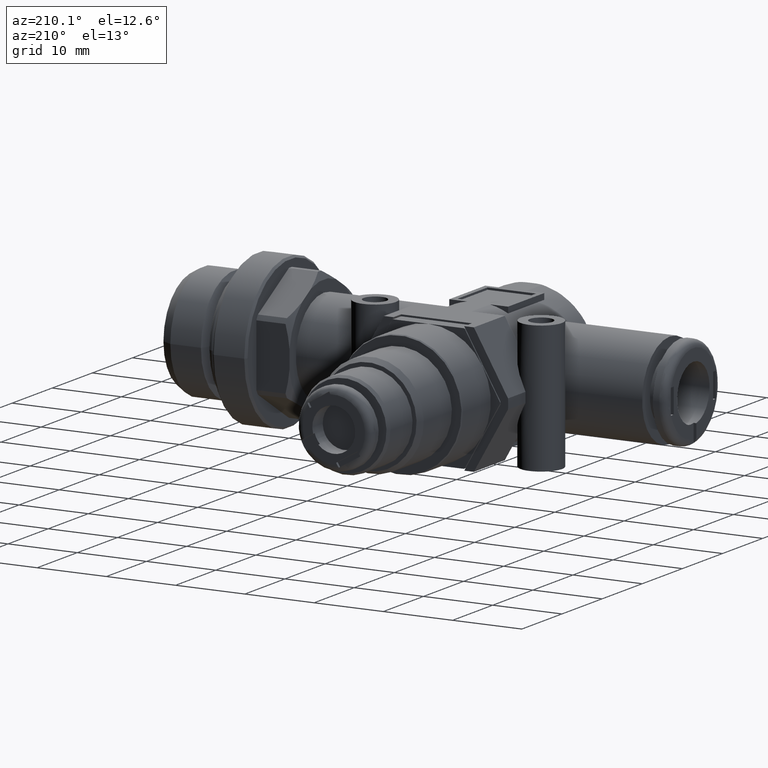
[diagram: clean part render]
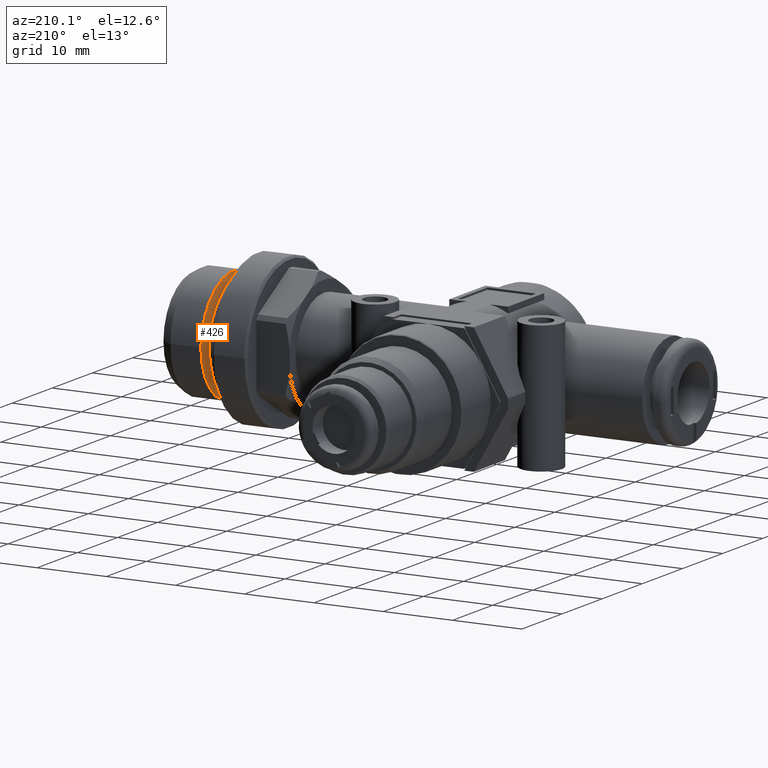
[diagram: same view with one face highlighted and labeled with its STEP entity id]
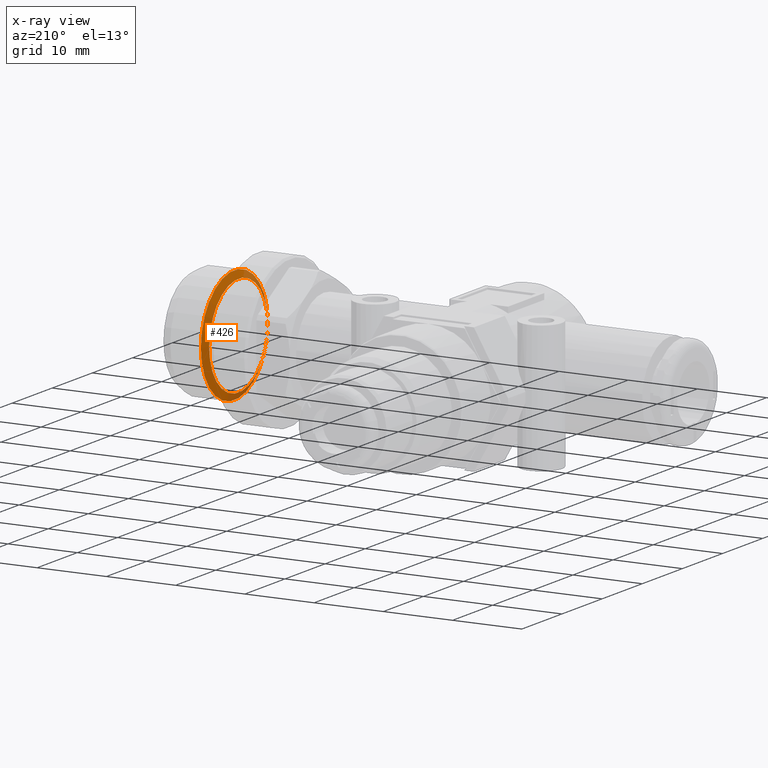
[diagram: x-ray of the same camera — body ghosted, the highlighted face saturated]
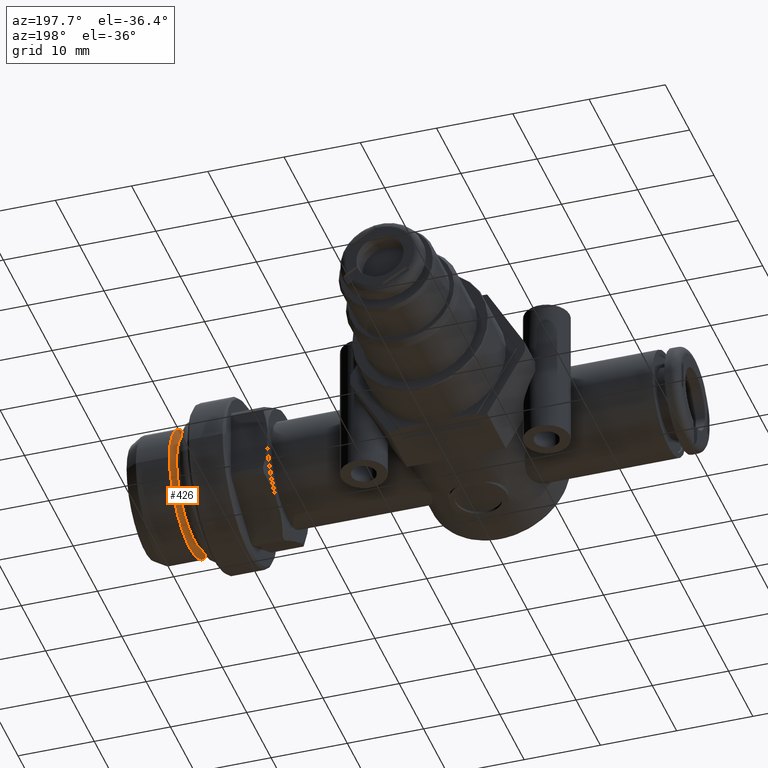
[diagram: same view with one face highlighted and labeled with its STEP entity id]
A machine part, auxiliary view. The second image highlights one B-rep face of the part: STEP entity #426.
The next image is the same camera in x-ray: the body ghosted, the highlighted face saturated — about 18% of this face is hidden behind the body in this view.
A second angle (auxiliary view) of the same face is appended — the face is thin or edge-on in the first view.
In plain terms, the highlighted conical surface has half-angle 60 deg.
Its self-contained STEP definition (entity closure, byte-faithful):
#426 = ADVANCED_FACE( '', ( #939, #940 ), #941, .T. );
#939 = FACE_OUTER_BOUND( '', #1624, .T. );
#940 = FACE_BOUND( '', #1625, .T. );
#941 = CONICAL_SURFACE( '', #1626, 7.30000000000000, 1.04719755119660 );
#1624 = EDGE_LOOP( '', ( #2547 ) );
#1625 = EDGE_LOOP( '', ( #2548 ) );
#1626 = AXIS2_PLACEMENT_3D( '', #2549, #2550, #2551 );
#2547 = ORIENTED_EDGE( '', *, *, #3889, .T. );
#2548 = ORIENTED_EDGE( '', *, *, #3890, .F. );
#2549 = CARTESIAN_POINT( '', ( -2.50000000000000, 0.000000000000000, 0.000000000000000 ) );
#2550 = DIRECTION( '', ( -1.00000000000000, 0.000000000000000, -0.000000000000000 ) );
#2551 = DIRECTION( '', ( 0.000000000000000, 0.000000000000000, 1.00000000000000 ) );
#3889 = EDGE_CURVE( '', #4630, #4630, #4631, .T. );
#3890 = EDGE_CURVE( '', #4632, #4632, #4633, .T. );
#4630 = VERTEX_POINT( '', #5846 );
#4631 = CIRCLE( '', #5847, 8.33100000000000 );
#4632 = VERTEX_POINT( '', #5848 );
#4633 = CIRCLE( '', #5849, 7.30000000000000 );
#5846 = CARTESIAN_POINT( '', ( -3.09524812753450, 0.000000000000000, -8.33100000000000 ) );
#5847 = AXIS2_PLACEMENT_3D( '', #7124, #7125, #7126 );
#5848 = CARTESIAN_POINT( '', ( -2.50000000000000, 0.000000000000000, -7.30000000000000 ) );
#5849 = AXIS2_PLACEMENT_3D( '', #7127, #7128, #7129 );
#7124 = CARTESIAN_POINT( '', ( -3.09524812753450, 0.000000000000000, 0.000000000000000 ) );
#7125 = DIRECTION( '', ( 1.00000000000000, 0.000000000000000, -0.000000000000000 ) );
#7126 = DIRECTION( '', ( -0.000000000000000, 0.000000000000000, -1.00000000000000 ) );
#7127 = CARTESIAN_POINT( '', ( -2.50000000000000, 0.000000000000000, 0.000000000000000 ) );
#7128 = DIRECTION( '', ( 1.00000000000000, 0.000000000000000, -0.000000000000000 ) );
#7129 = DIRECTION( '', ( -0.000000000000000, 0.000000000000000, -1.00000000000000 ) );